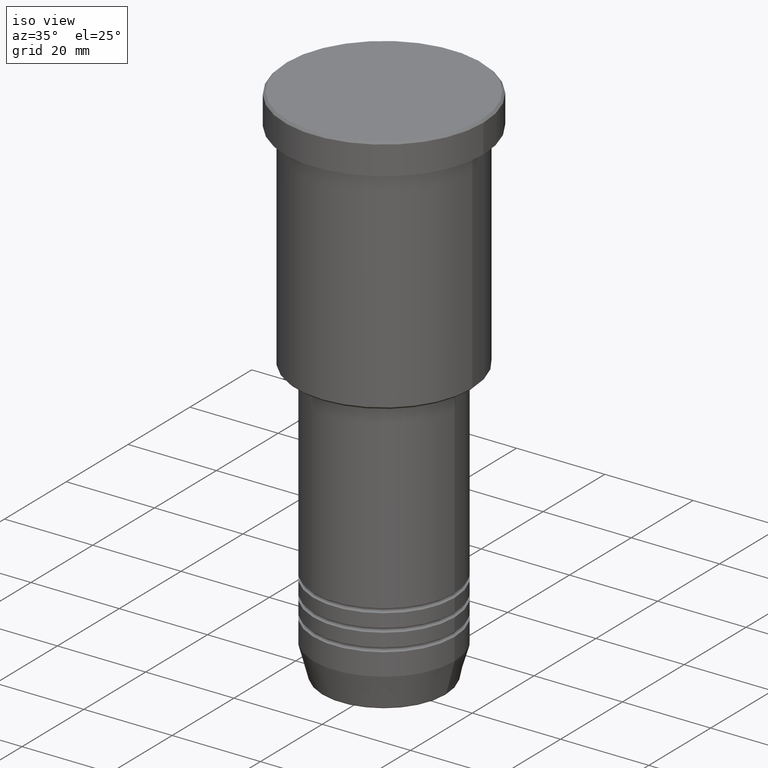
[diagram: clean part render]
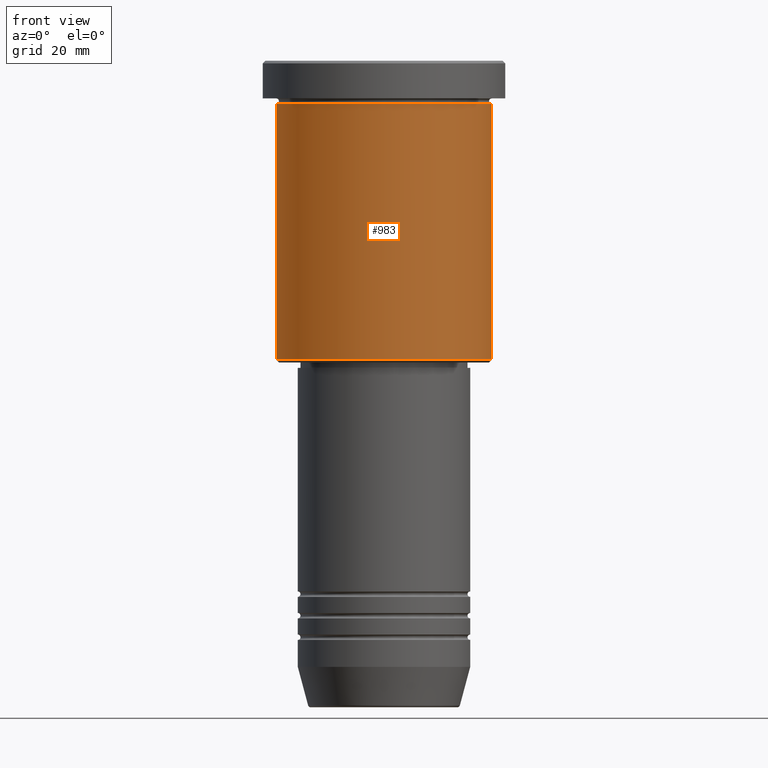
[diagram: tour spotlight — one face highlighted and labeled with its STEP entity id]
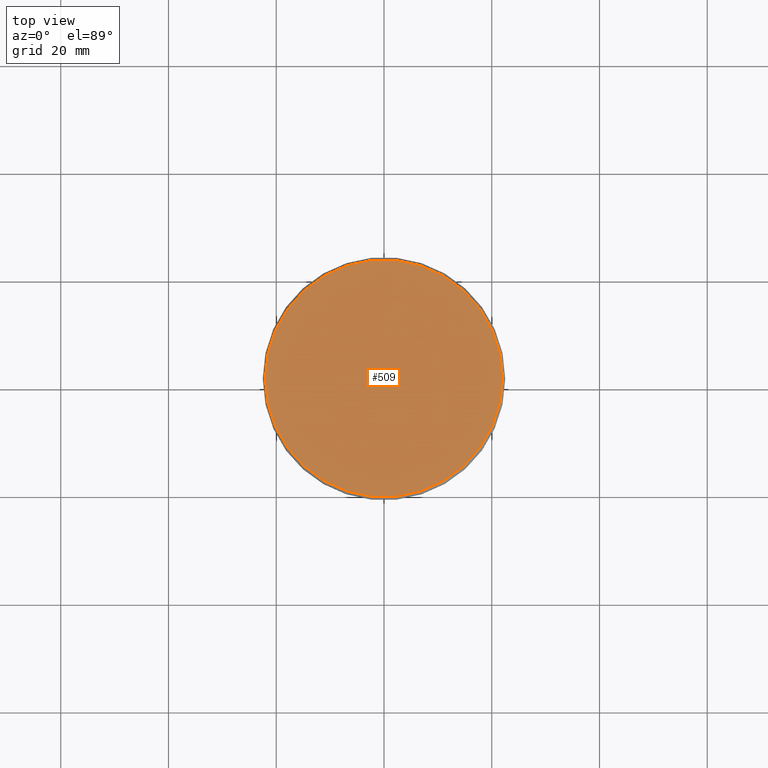
[diagram: tour spotlight — one face highlighted and labeled with its STEP entity id]
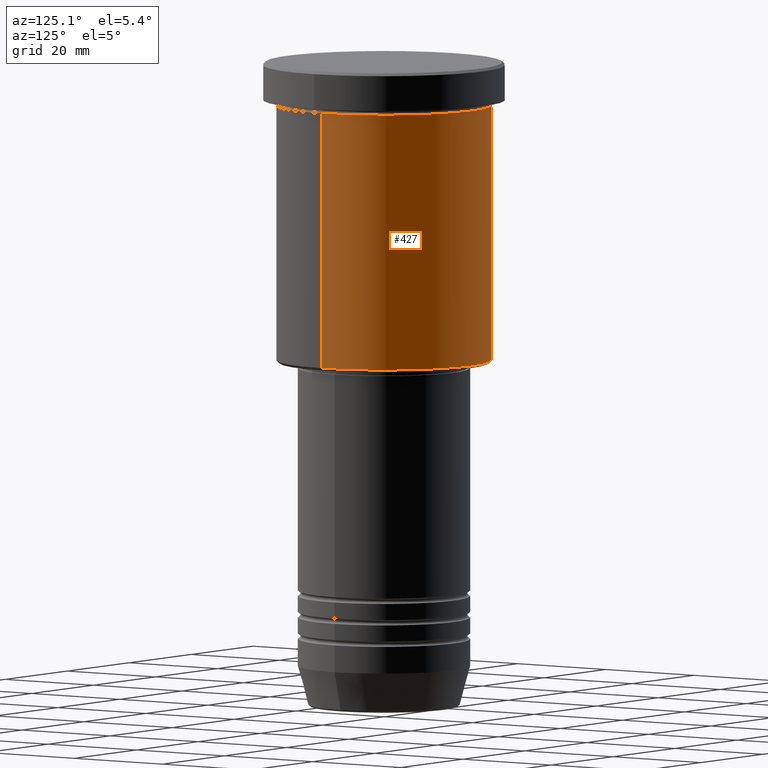
[diagram: tour spotlight — one face highlighted and labeled with its STEP entity id]
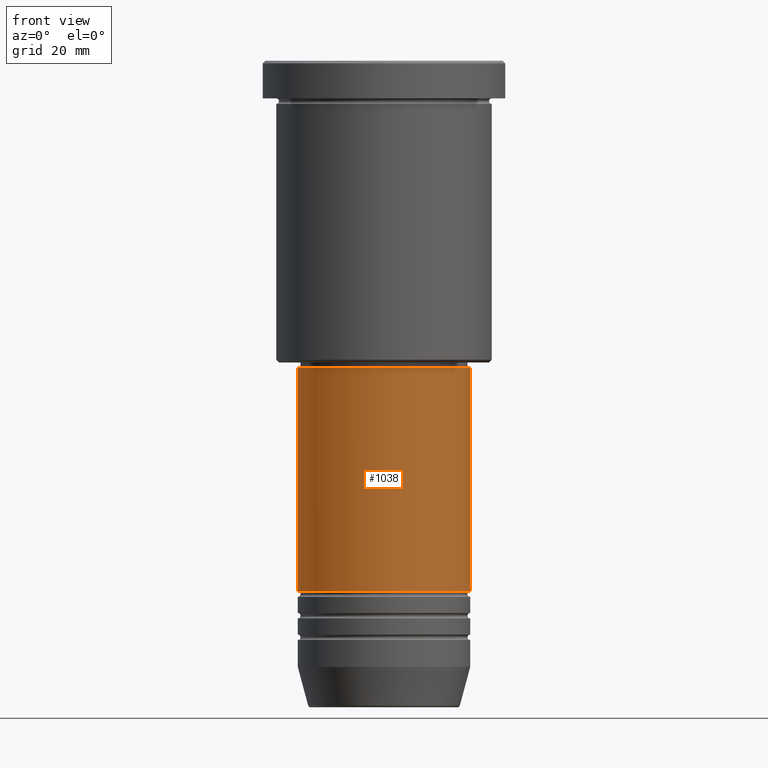
[diagram: tour spotlight — one face highlighted and labeled with its STEP entity id]
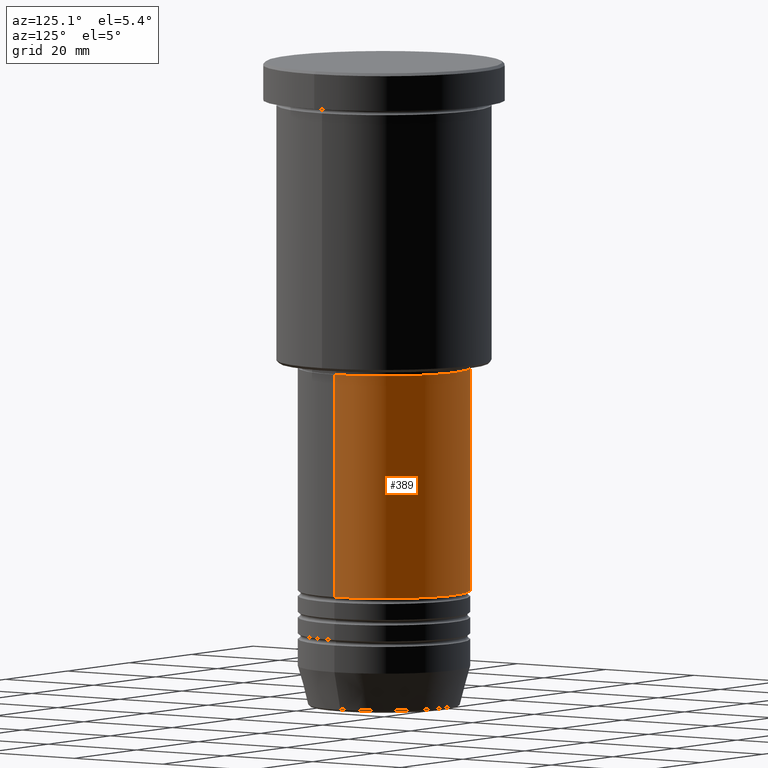
[diagram: tour spotlight — one face highlighted and labeled with its STEP entity id]
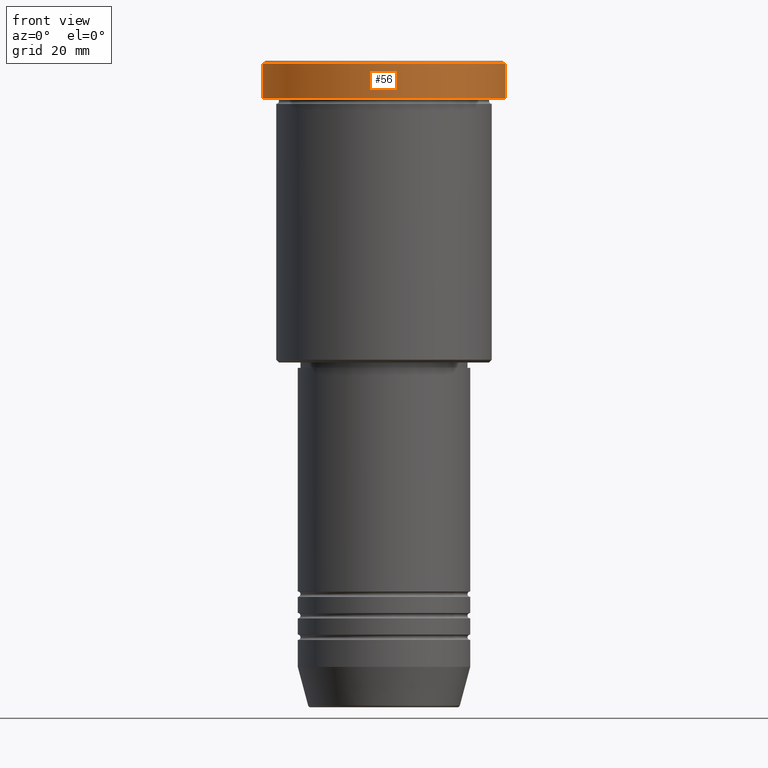
[diagram: tour spotlight — one face highlighted and labeled with its STEP entity id]
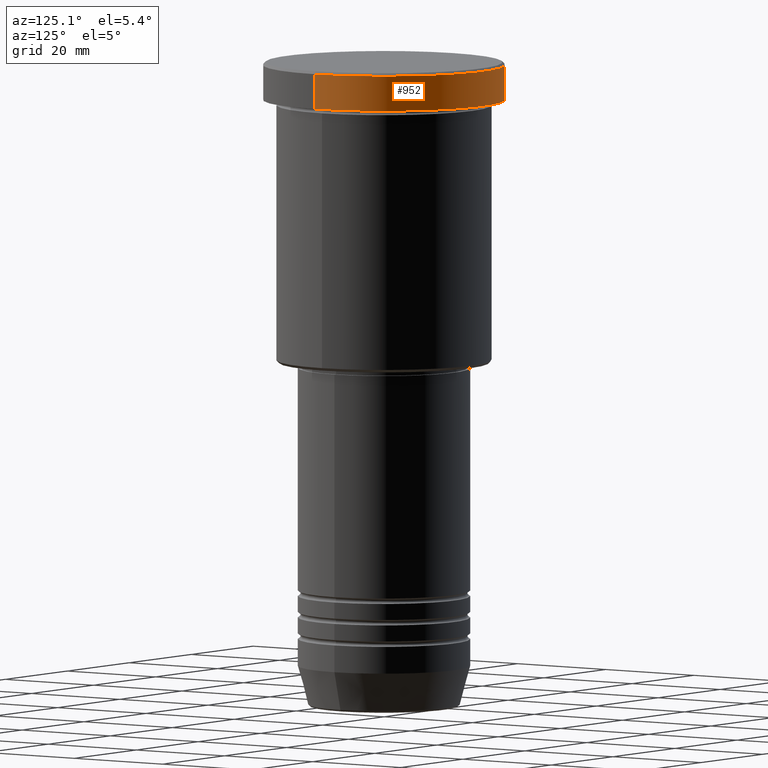
[diagram: tour spotlight — one face highlighted and labeled with its STEP entity id]
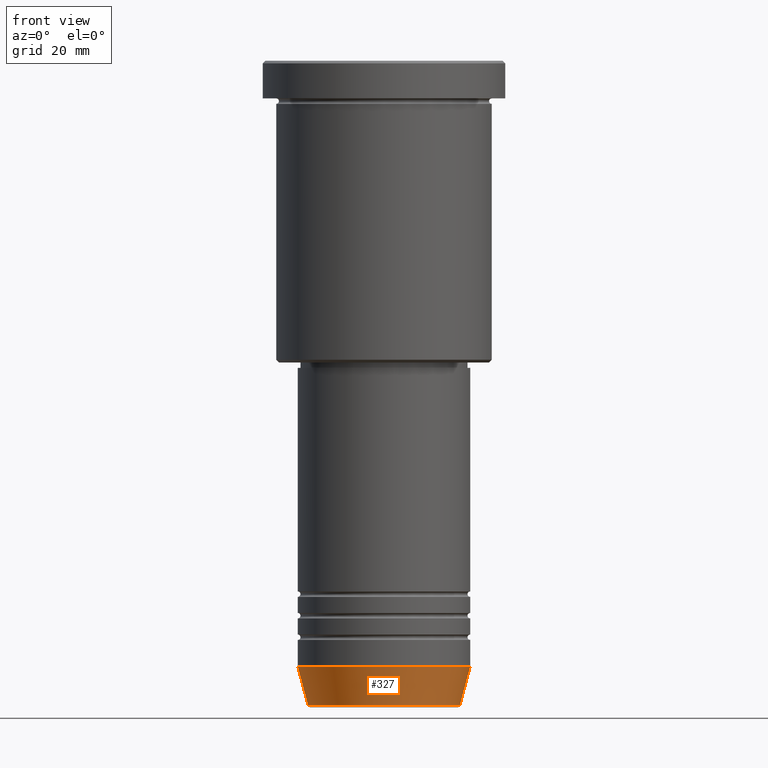
[diagram: tour spotlight — one face highlighted and labeled with its STEP entity id]
A machine part: a face-by-face anatomy tour. The part has 43 B-rep faces; the first image is the clean iso view, then the 8 largest visible faces are spotlighted one at a time (largest first), each with its STEP entity span.

Face 1 — front view, entity #983. In plain terms, the highlighted cylindrical surface (partial cylindrical patch) has radius 20 mm, axis along (-0, -0, 1).
Definition (entity closure, byte-faithful):
#8 = VERTEX_POINT ( 'NONE', #445 ) ;
#34 = LINE ( 'NONE', #398, #1052 ) ;
#52 = FACE_OUTER_BOUND ( 'NONE', #277, .T. ) ;
#58 = CARTESIAN_POINT ( 'NONE',  ( 0.000000000000000000, 0.000000000000000000, 0.000000000000000000 ) ) ;
#105 = DIRECTION ( 'NONE',  ( -0.000000000000000000, -0.000000000000000000, 1.000000000000000000 ) ) ;
#120 = DIRECTION ( 'NONE',  ( 1.000000000000000000, 0.000000000000000000, 0.000000000000000000 ) ) ;
#123 = CARTESIAN_POINT ( 'NONE',  ( 0.000000000000000000, 0.000000000000000000, -55.49999999999999289 ) ) ;
#260 = EDGE_CURVE ( 'NONE', #869, #543, #283, .T. ) ;
#277 = EDGE_LOOP ( 'NONE', ( #363, #738, #516, #1040 ) ) ;
#279 = CARTESIAN_POINT ( 'NONE',  ( 20.00000000000000355, 0.000000000000000000, -55.49999999999999289 ) ) ;
#283 = CIRCLE ( 'NONE', #1105, 20.00000000000000000 ) ;
#350 = CARTESIAN_POINT ( 'NONE',  ( -20.00000000000000355, 2.449293598294706907E-15, 0.000000000000000000 ) ) ;
#363 = ORIENTED_EDGE ( 'NONE', *, *, #1092, .F. ) ;
#392 = DIRECTION ( 'NONE',  ( -0.000000000000000000, -0.000000000000000000, 1.000000000000000000 ) ) ;
#398 = CARTESIAN_POINT ( 'NONE',  ( 20.00000000000000355, 0.000000000000000000, 0.000000000000000000 ) ) ;
#438 = EDGE_CURVE ( 'NONE', #891, #543, #34, .T. ) ;
#445 = CARTESIAN_POINT ( 'NONE',  ( -20.00000000000000355, 2.449293598294706907E-15, -55.49999999999999289 ) ) ;
#473 = EDGE_CURVE ( 'NONE', #8, #891, #647, .T. ) ;
#516 = ORIENTED_EDGE ( 'NONE', *, *, #438, .T. ) ;
#543 = VERTEX_POINT ( 'NONE', #680 ) ;
#553 = CARTESIAN_POINT ( 'NONE',  ( -20.00000000000000000, 2.449293598294706513E-15, -7.999999999999994671 ) ) ;
#637 = DIRECTION ( 'NONE',  ( -0.000000000000000000, -0.000000000000000000, 1.000000000000000000 ) ) ;
#647 = CIRCLE ( 'NONE', #1075, 20.00000000000000355 ) ;
#664 = CARTESIAN_POINT ( 'NONE',  ( 0.000000000000000000, 0.000000000000000000, -7.999999999999994671 ) ) ;
#678 = CYLINDRICAL_SURFACE ( 'NONE', #846, 20.00000000000000355 ) ;
#680 = CARTESIAN_POINT ( 'NONE',  ( 20.00000000000000000, 0.000000000000000000, -7.999999999999994671 ) ) ;
#738 = ORIENTED_EDGE ( 'NONE', *, *, #473, .T. ) ;
#757 = DIRECTION ( 'NONE',  ( -1.000000000000000000, 0.000000000000000000, 0.000000000000000000 ) ) ;
#795 = LINE ( 'NONE', #350, #1165 ) ;
#846 = AXIS2_PLACEMENT_3D ( 'NONE', #58, #1150, #973 ) ;
#869 = VERTEX_POINT ( 'NONE', #553 ) ;
#891 = VERTEX_POINT ( 'NONE', #279 ) ;
#973 = DIRECTION ( 'NONE',  ( 1.000000000000000000, 0.000000000000000000, 0.000000000000000000 ) ) ;
#983 = ADVANCED_FACE ( 'NONE', ( #52 ), #678, .T. ) ;
#1029 = DIRECTION ( 'NONE',  ( -0.000000000000000000, -0.000000000000000000, 1.000000000000000000 ) ) ;
#1040 = ORIENTED_EDGE ( 'NONE', *, *, #260, .F. ) ;
#1052 = VECTOR ( 'NONE', #105, 1000.000000000000000 ) ;
#1075 = AXIS2_PLACEMENT_3D ( 'NONE', #123, #392, #757 ) ;
#1092 = EDGE_CURVE ( 'NONE', #8, #869, #795, .T. ) ;
#1105 = AXIS2_PLACEMENT_3D ( 'NONE', #664, #1029, #120 ) ;
#1150 = DIRECTION ( 'NONE',  ( -0.000000000000000000, -0.000000000000000000, 1.000000000000000000 ) ) ;
#1165 = VECTOR ( 'NONE', #637, 1000.000000000000000 ) ;

Face 2 — top view, entity #509. In plain terms, the highlighted planar face has unit normal (0, -0, 1).
Definition (entity closure, byte-faithful):
#16 = AXIS2_PLACEMENT_3D ( 'NONE', #700, #609, #54 ) ;
#49 = PLANE ( 'NONE',  #16 ) ;
#54 = DIRECTION ( 'NONE',  ( 1.000000000000000000, 0.000000000000000000, 0.000000000000000000 ) ) ;
#86 = EDGE_CURVE ( 'NONE', #555, #741, #249, .T. ) ;
#124 = ORIENTED_EDGE ( 'NONE', *, *, #86, .T. ) ;
#249 = CIRCLE ( 'NONE', #477, 22.00000000000002132 ) ;
#266 = EDGE_LOOP ( 'NONE', ( #701, #124 ) ) ;
#352 = DIRECTION ( 'NONE',  ( 1.000000000000000000, 0.000000000000000000, 0.000000000000000000 ) ) ;
#378 = EDGE_CURVE ( 'NONE', #741, #555, #1162, .T. ) ;
#467 = CARTESIAN_POINT ( 'NONE',  ( 0.000000000000000000, 0.000000000000000000, 0.000000000000000000 ) ) ;
#477 = AXIS2_PLACEMENT_3D ( 'NONE', #796, #982, #352 ) ;
#509 = ADVANCED_FACE ( 'NONE', ( #957 ), #49, .T. ) ;
#555 = VERTEX_POINT ( 'NONE', #880 ) ;
#609 = DIRECTION ( 'NONE',  ( 0.000000000000000000, -0.000000000000000000, 1.000000000000000000 ) ) ;
#700 = CARTESIAN_POINT ( 'NONE',  ( 0.000000000000000000, 0.000000000000000000, 0.000000000000000000 ) ) ;
#701 = ORIENTED_EDGE ( 'NONE', *, *, #378, .T. ) ;
#727 = AXIS2_PLACEMENT_3D ( 'NONE', #467, #847, #1020 ) ;
#741 = VERTEX_POINT ( 'NONE', #1089 ) ;
#796 = CARTESIAN_POINT ( 'NONE',  ( 0.000000000000000000, 0.000000000000000000, 0.000000000000000000 ) ) ;
#847 = DIRECTION ( 'NONE',  ( -0.000000000000000000, -0.000000000000000000, 1.000000000000000000 ) ) ;
#880 = CARTESIAN_POINT ( 'NONE',  ( 22.00000000000002132, 2.724839128102862174E-15, 0.000000000000000000 ) ) ;
#957 = FACE_OUTER_BOUND ( 'NONE', #266, .T. ) ;
#982 = DIRECTION ( 'NONE',  ( -0.000000000000000000, -0.000000000000000000, 1.000000000000000000 ) ) ;
#1020 = DIRECTION ( 'NONE',  ( 1.000000000000000000, 0.000000000000000000, 0.000000000000000000 ) ) ;
#1089 = CARTESIAN_POINT ( 'NONE',  ( -22.00000000000002132, 0.000000000000000000, 0.000000000000000000 ) ) ;
#1162 = CIRCLE ( 'NONE', #727, 22.00000000000002132 ) ;

Face 3 — auxiliary view, entity #427. In plain terms, the highlighted cylindrical surface (partial cylindrical patch) has radius 20 mm, axis along (-0, -0, 1).
Definition (entity closure, byte-faithful):
#8 = VERTEX_POINT ( 'NONE', #445 ) ;
#30 = CARTESIAN_POINT ( 'NONE',  ( 0.000000000000000000, 0.000000000000000000, 0.000000000000000000 ) ) ;
#34 = LINE ( 'NONE', #398, #1052 ) ;
#59 = AXIS2_PLACEMENT_3D ( 'NONE', #30, #1026, #1104 ) ;
#105 = DIRECTION ( 'NONE',  ( -0.000000000000000000, -0.000000000000000000, 1.000000000000000000 ) ) ;
#109 = FACE_OUTER_BOUND ( 'NONE', #403, .T. ) ;
#141 = ORIENTED_EDGE ( 'NONE', *, *, #1092, .T. ) ;
#157 = DIRECTION ( 'NONE',  ( -0.000000000000000000, -0.000000000000000000, 1.000000000000000000 ) ) ;
#204 = ORIENTED_EDGE ( 'NONE', *, *, #932, .F. ) ;
#211 = CIRCLE ( 'NONE', #558, 20.00000000000000355 ) ;
#279 = CARTESIAN_POINT ( 'NONE',  ( 20.00000000000000355, 0.000000000000000000, -55.49999999999999289 ) ) ;
#284 = CYLINDRICAL_SURFACE ( 'NONE', #59, 20.00000000000000355 ) ;
#350 = CARTESIAN_POINT ( 'NONE',  ( -20.00000000000000355, 2.449293598294706907E-15, 0.000000000000000000 ) ) ;
#385 = AXIS2_PLACEMENT_3D ( 'NONE', #470, #666, #1018 ) ;
#398 = CARTESIAN_POINT ( 'NONE',  ( 20.00000000000000355, 0.000000000000000000, 0.000000000000000000 ) ) ;
#403 = EDGE_LOOP ( 'NONE', ( #1066, #141, #204, #889 ) ) ;
#427 = ADVANCED_FACE ( 'NONE', ( #109 ), #284, .T. ) ;
#438 = EDGE_CURVE ( 'NONE', #891, #543, #34, .T. ) ;
#445 = CARTESIAN_POINT ( 'NONE',  ( -20.00000000000000355, 2.449293598294706907E-15, -55.49999999999999289 ) ) ;
#470 = CARTESIAN_POINT ( 'NONE',  ( 0.000000000000000000, 0.000000000000000000, -7.999999999999994671 ) ) ;
#532 = CARTESIAN_POINT ( 'NONE',  ( 0.000000000000000000, 0.000000000000000000, -55.49999999999999289 ) ) ;
#543 = VERTEX_POINT ( 'NONE', #680 ) ;
#553 = CARTESIAN_POINT ( 'NONE',  ( -20.00000000000000000, 2.449293598294706513E-15, -7.999999999999994671 ) ) ;
#558 = AXIS2_PLACEMENT_3D ( 'NONE', #532, #157, #818 ) ;
#637 = DIRECTION ( 'NONE',  ( -0.000000000000000000, -0.000000000000000000, 1.000000000000000000 ) ) ;
#666 = DIRECTION ( 'NONE',  ( -0.000000000000000000, -0.000000000000000000, 1.000000000000000000 ) ) ;
#680 = CARTESIAN_POINT ( 'NONE',  ( 20.00000000000000000, 0.000000000000000000, -7.999999999999994671 ) ) ;
#795 = LINE ( 'NONE', #350, #1165 ) ;
#818 = DIRECTION ( 'NONE',  ( -1.000000000000000000, 0.000000000000000000, 0.000000000000000000 ) ) ;
#869 = VERTEX_POINT ( 'NONE', #553 ) ;
#889 = ORIENTED_EDGE ( 'NONE', *, *, #438, .F. ) ;
#891 = VERTEX_POINT ( 'NONE', #279 ) ;
#904 = CIRCLE ( 'NONE', #385, 20.00000000000000000 ) ;
#932 = EDGE_CURVE ( 'NONE', #543, #869, #904, .T. ) ;
#1018 = DIRECTION ( 'NONE',  ( 1.000000000000000000, 0.000000000000000000, 0.000000000000000000 ) ) ;
#1026 = DIRECTION ( 'NONE',  ( -0.000000000000000000, -0.000000000000000000, 1.000000000000000000 ) ) ;
#1052 = VECTOR ( 'NONE', #105, 1000.000000000000000 ) ;
#1066 = ORIENTED_EDGE ( 'NONE', *, *, #1109, .T. ) ;
#1092 = EDGE_CURVE ( 'NONE', #8, #869, #795, .T. ) ;
#1104 = DIRECTION ( 'NONE',  ( 1.000000000000000000, 0.000000000000000000, 0.000000000000000000 ) ) ;
#1109 = EDGE_CURVE ( 'NONE', #891, #8, #211, .T. ) ;
#1165 = VECTOR ( 'NONE', #637, 1000.000000000000000 ) ;

Face 4 — front view, entity #1038. In plain terms, the highlighted cylindrical surface (partial cylindrical patch) has radius 16 mm, axis along (-0, -0, 1).
Definition (entity closure, byte-faithful):
#31 = ORIENTED_EDGE ( 'NONE', *, *, #645, .F. ) ;
#32 = FACE_OUTER_BOUND ( 'NONE', #1180, .T. ) ;
#139 = LINE ( 'NONE', #323, #425 ) ;
#171 = CARTESIAN_POINT ( 'NONE',  ( 0.000000000000000000, 0.000000000000000000, -98.49999999999997158 ) ) ;
#179 = VERTEX_POINT ( 'NONE', #401 ) ;
#190 = AXIS2_PLACEMENT_3D ( 'NONE', #171, #530, #542 ) ;
#213 = VERTEX_POINT ( 'NONE', #1113 ) ;
#244 = CYLINDRICAL_SURFACE ( 'NONE', #938, 16.00000000000000000 ) ;
#254 = LINE ( 'NONE', #453, #843 ) ;
#274 = EDGE_CURVE ( 'NONE', #603, #213, #139, .T. ) ;
#316 = ORIENTED_EDGE ( 'NONE', *, *, #702, .T. ) ;
#323 = CARTESIAN_POINT ( 'NONE',  ( -16.00000000000000000, 1.959434878635765131E-15, 0.000000000000000000 ) ) ;
#326 = ORIENTED_EDGE ( 'NONE', *, *, #677, .T. ) ;
#357 = CARTESIAN_POINT ( 'NONE',  ( 0.000000000000000000, 0.000000000000000000, -57.00000000000002842 ) ) ;
#401 = CARTESIAN_POINT ( 'NONE',  ( 16.00000000000000000, 0.000000000000000000, -57.00000000000002842 ) ) ;
#402 = DIRECTION ( 'NONE',  ( -0.000000000000000000, -0.000000000000000000, 1.000000000000000000 ) ) ;
#425 = VECTOR ( 'NONE', #672, 1000.000000000000000 ) ;
#453 = CARTESIAN_POINT ( 'NONE',  ( 16.00000000000000000, 0.000000000000000000, 0.000000000000000000 ) ) ;
#459 = AXIS2_PLACEMENT_3D ( 'NONE', #357, #549, #1085 ) ;
#496 = ORIENTED_EDGE ( 'NONE', *, *, #274, .F. ) ;
#530 = DIRECTION ( 'NONE',  ( -0.000000000000000000, -0.000000000000000000, 1.000000000000000000 ) ) ;
#542 = DIRECTION ( 'NONE',  ( 1.000000000000000000, 0.000000000000000000, 0.000000000000000000 ) ) ;
#549 = DIRECTION ( 'NONE',  ( -0.000000000000000000, -0.000000000000000000, 1.000000000000000000 ) ) ;
#575 = CIRCLE ( 'NONE', #190, 16.00000000000000000 ) ;
#603 = VERTEX_POINT ( 'NONE', #777 ) ;
#645 = EDGE_CURVE ( 'NONE', #213, #179, #978, .T. ) ;
#672 = DIRECTION ( 'NONE',  ( -0.000000000000000000, -0.000000000000000000, 1.000000000000000000 ) ) ;
#677 = EDGE_CURVE ( 'NONE', #1048, #179, #254, .T. ) ;
#702 = EDGE_CURVE ( 'NONE', #603, #1048, #575, .T. ) ;
#713 = DIRECTION ( 'NONE',  ( -0.000000000000000000, -0.000000000000000000, 1.000000000000000000 ) ) ;
#777 = CARTESIAN_POINT ( 'NONE',  ( -16.00000000000000000, 1.959434878635765131E-15, -98.49999999999997158 ) ) ;
#786 = CARTESIAN_POINT ( 'NONE',  ( 16.00000000000000000, 0.000000000000000000, -98.49999999999997158 ) ) ;
#843 = VECTOR ( 'NONE', #713, 1000.000000000000000 ) ;
#938 = AXIS2_PLACEMENT_3D ( 'NONE', #947, #402, #1065 ) ;
#947 = CARTESIAN_POINT ( 'NONE',  ( 0.000000000000000000, 0.000000000000000000, 0.000000000000000000 ) ) ;
#978 = CIRCLE ( 'NONE', #459, 16.00000000000000000 ) ;
#1038 = ADVANCED_FACE ( 'NONE', ( #32 ), #244, .T. ) ;
#1048 = VERTEX_POINT ( 'NONE', #786 ) ;
#1065 = DIRECTION ( 'NONE',  ( 1.000000000000000000, 0.000000000000000000, 0.000000000000000000 ) ) ;
#1085 = DIRECTION ( 'NONE',  ( 1.000000000000000000, 0.000000000000000000, 0.000000000000000000 ) ) ;
#1113 = CARTESIAN_POINT ( 'NONE',  ( -16.00000000000000000, 1.959434878635765131E-15, -57.00000000000002842 ) ) ;
#1180 = EDGE_LOOP ( 'NONE', ( #496, #316, #326, #31 ) ) ;

Face 5 — auxiliary view, entity #389. In plain terms, the highlighted cylindrical surface (partial cylindrical patch) has radius 16 mm, axis along (-0, -0, 1).
Definition (entity closure, byte-faithful):
#44 = ORIENTED_EDGE ( 'NONE', *, *, #191, .T. ) ;
#111 = CIRCLE ( 'NONE', #1054, 16.00000000000000000 ) ;
#117 = ORIENTED_EDGE ( 'NONE', *, *, #442, .F. ) ;
#139 = LINE ( 'NONE', #323, #425 ) ;
#148 = ORIENTED_EDGE ( 'NONE', *, *, #677, .F. ) ;
#169 = DIRECTION ( 'NONE',  ( -0.000000000000000000, -0.000000000000000000, 1.000000000000000000 ) ) ;
#179 = VERTEX_POINT ( 'NONE', #401 ) ;
#189 = AXIS2_PLACEMENT_3D ( 'NONE', #834, #561, #565 ) ;
#191 = EDGE_CURVE ( 'NONE', #1048, #603, #707, .T. ) ;
#195 = DIRECTION ( 'NONE',  ( -0.000000000000000000, -0.000000000000000000, 1.000000000000000000 ) ) ;
#213 = VERTEX_POINT ( 'NONE', #1113 ) ;
#254 = LINE ( 'NONE', #453, #843 ) ;
#274 = EDGE_CURVE ( 'NONE', #603, #213, #139, .T. ) ;
#288 = CARTESIAN_POINT ( 'NONE',  ( 0.000000000000000000, 0.000000000000000000, -98.49999999999997158 ) ) ;
#323 = CARTESIAN_POINT ( 'NONE',  ( -16.00000000000000000, 1.959434878635765131E-15, 0.000000000000000000 ) ) ;
#389 = ADVANCED_FACE ( 'NONE', ( #488 ), #1116, .T. ) ;
#401 = CARTESIAN_POINT ( 'NONE',  ( 16.00000000000000000, 0.000000000000000000, -57.00000000000002842 ) ) ;
#425 = VECTOR ( 'NONE', #672, 1000.000000000000000 ) ;
#442 = EDGE_CURVE ( 'NONE', #179, #213, #111, .T. ) ;
#453 = CARTESIAN_POINT ( 'NONE',  ( 16.00000000000000000, 0.000000000000000000, 0.000000000000000000 ) ) ;
#488 = FACE_OUTER_BOUND ( 'NONE', #762, .T. ) ;
#499 = AXIS2_PLACEMENT_3D ( 'NONE', #288, #169, #907 ) ;
#561 = DIRECTION ( 'NONE',  ( -0.000000000000000000, -0.000000000000000000, 1.000000000000000000 ) ) ;
#565 = DIRECTION ( 'NONE',  ( 1.000000000000000000, 0.000000000000000000, 0.000000000000000000 ) ) ;
#603 = VERTEX_POINT ( 'NONE', #777 ) ;
#672 = DIRECTION ( 'NONE',  ( -0.000000000000000000, -0.000000000000000000, 1.000000000000000000 ) ) ;
#677 = EDGE_CURVE ( 'NONE', #1048, #179, #254, .T. ) ;
#707 = CIRCLE ( 'NONE', #499, 16.00000000000000000 ) ;
#713 = DIRECTION ( 'NONE',  ( -0.000000000000000000, -0.000000000000000000, 1.000000000000000000 ) ) ;
#762 = EDGE_LOOP ( 'NONE', ( #44, #1019, #117, #148 ) ) ;
#770 = DIRECTION ( 'NONE',  ( 1.000000000000000000, 0.000000000000000000, 0.000000000000000000 ) ) ;
#777 = CARTESIAN_POINT ( 'NONE',  ( -16.00000000000000000, 1.959434878635765131E-15, -98.49999999999997158 ) ) ;
#786 = CARTESIAN_POINT ( 'NONE',  ( 16.00000000000000000, 0.000000000000000000, -98.49999999999997158 ) ) ;
#834 = CARTESIAN_POINT ( 'NONE',  ( 0.000000000000000000, 0.000000000000000000, 0.000000000000000000 ) ) ;
#843 = VECTOR ( 'NONE', #713, 1000.000000000000000 ) ;
#907 = DIRECTION ( 'NONE',  ( 1.000000000000000000, 0.000000000000000000, 0.000000000000000000 ) ) ;
#1016 = CARTESIAN_POINT ( 'NONE',  ( 0.000000000000000000, 0.000000000000000000, -57.00000000000002842 ) ) ;
#1019 = ORIENTED_EDGE ( 'NONE', *, *, #274, .T. ) ;
#1048 = VERTEX_POINT ( 'NONE', #786 ) ;
#1054 = AXIS2_PLACEMENT_3D ( 'NONE', #1016, #195, #770 ) ;
#1113 = CARTESIAN_POINT ( 'NONE',  ( -16.00000000000000000, 1.959434878635765131E-15, -57.00000000000002842 ) ) ;
#1116 = CYLINDRICAL_SURFACE ( 'NONE', #189, 16.00000000000000000 ) ;

Face 6 — front view, entity #56. In plain terms, the highlighted cylindrical surface (partial cylindrical patch) has radius 22.5 mm, axis along (-0, -0, 1).
Definition (entity closure, byte-faithful):
#13 = DIRECTION ( 'NONE',  ( -0.000000000000000000, -0.000000000000000000, 1.000000000000000000 ) ) ;
#14 = AXIS2_PLACEMENT_3D ( 'NONE', #758, #302, #730 ) ;
#29 = VERTEX_POINT ( 'NONE', #524 ) ;
#56 = ADVANCED_FACE ( 'NONE', ( #1156 ), #1151, .T. ) ;
#106 = EDGE_CURVE ( 'NONE', #977, #592, #349, .T. ) ;
#177 = CARTESIAN_POINT ( 'NONE',  ( 0.000000000000000000, 0.000000000000000000, -6.999999999999995559 ) ) ;
#183 = VERTEX_POINT ( 'NONE', #360 ) ;
#205 = CARTESIAN_POINT ( 'NONE',  ( -22.50000000000000000, 2.755455298081544778E-15, 0.000000000000000000 ) ) ;
#224 = ORIENTED_EDGE ( 'NONE', *, *, #106, .T. ) ;
#228 = CIRCLE ( 'NONE', #14, 22.50000000000000000 ) ;
#240 = DIRECTION ( 'NONE',  ( -0.000000000000000000, -0.000000000000000000, 1.000000000000000000 ) ) ;
#243 = EDGE_CURVE ( 'NONE', #29, #183, #228, .T. ) ;
#295 = DIRECTION ( 'NONE',  ( 1.000000000000000000, 0.000000000000000000, 0.000000000000000000 ) ) ;
#301 = ORIENTED_EDGE ( 'NONE', *, *, #243, .T. ) ;
#302 = DIRECTION ( 'NONE',  ( 0.000000000000000000, 0.000000000000000000, -1.000000000000000000 ) ) ;
#349 = CIRCLE ( 'NONE', #901, 22.50000000000000000 ) ;
#360 = CARTESIAN_POINT ( 'NONE',  ( -22.50000000000000000, 2.755455298081544778E-15, -0.4999999999999796274 ) ) ;
#449 = EDGE_CURVE ( 'NONE', #977, #183, #472, .T. ) ;
#472 = LINE ( 'NONE', #205, #769 ) ;
#474 = DIRECTION ( 'NONE',  ( -0.000000000000000000, -0.000000000000000000, 1.000000000000000000 ) ) ;
#524 = CARTESIAN_POINT ( 'NONE',  ( 22.50000000000000000, 0.000000000000000000, -0.4999999999999796274 ) ) ;
#584 = CARTESIAN_POINT ( 'NONE',  ( -22.50000000000000000, 2.755455298081544778E-15, -6.999999999999995559 ) ) ;
#592 = VERTEX_POINT ( 'NONE', #867 ) ;
#622 = DIRECTION ( 'NONE',  ( 1.000000000000000000, 0.000000000000000000, 0.000000000000000000 ) ) ;
#650 = VECTOR ( 'NONE', #655, 1000.000000000000000 ) ;
#655 = DIRECTION ( 'NONE',  ( -0.000000000000000000, -0.000000000000000000, 1.000000000000000000 ) ) ;
#730 = DIRECTION ( 'NONE',  ( 1.000000000000000000, 0.000000000000000000, 0.000000000000000000 ) ) ;
#758 = CARTESIAN_POINT ( 'NONE',  ( 0.000000000000000000, 0.000000000000000000, -0.4999999999999796274 ) ) ;
#769 = VECTOR ( 'NONE', #13, 1000.000000000000000 ) ;
#857 = LINE ( 'NONE', #919, #650 ) ;
#861 = ORIENTED_EDGE ( 'NONE', *, *, #449, .F. ) ;
#867 = CARTESIAN_POINT ( 'NONE',  ( 22.50000000000000000, 0.000000000000000000, -6.999999999999995559 ) ) ;
#901 = AXIS2_PLACEMENT_3D ( 'NONE', #177, #474, #295 ) ;
#909 = EDGE_CURVE ( 'NONE', #592, #29, #857, .T. ) ;
#915 = EDGE_LOOP ( 'NONE', ( #861, #224, #948, #301 ) ) ;
#919 = CARTESIAN_POINT ( 'NONE',  ( 22.50000000000000000, 0.000000000000000000, 0.000000000000000000 ) ) ;
#948 = ORIENTED_EDGE ( 'NONE', *, *, #909, .T. ) ;
#965 = CARTESIAN_POINT ( 'NONE',  ( 0.000000000000000000, 0.000000000000000000, 0.000000000000000000 ) ) ;
#977 = VERTEX_POINT ( 'NONE', #584 ) ;
#995 = AXIS2_PLACEMENT_3D ( 'NONE', #965, #240, #622 ) ;
#1151 = CYLINDRICAL_SURFACE ( 'NONE', #995, 22.50000000000000000 ) ;
#1156 = FACE_OUTER_BOUND ( 'NONE', #915, .T. ) ;

Face 7 — auxiliary view, entity #952. In plain terms, the highlighted cylindrical surface (partial cylindrical patch) has radius 22.5 mm, axis along (-0, -0, 1).
Definition (entity closure, byte-faithful):
#13 = DIRECTION ( 'NONE',  ( -0.000000000000000000, -0.000000000000000000, 1.000000000000000000 ) ) ;
#29 = VERTEX_POINT ( 'NONE', #524 ) ;
#40 = CARTESIAN_POINT ( 'NONE',  ( 0.000000000000000000, 0.000000000000000000, 0.000000000000000000 ) ) ;
#183 = VERTEX_POINT ( 'NONE', #360 ) ;
#184 = EDGE_CURVE ( 'NONE', #592, #977, #443, .T. ) ;
#197 = DIRECTION ( 'NONE',  ( -0.000000000000000000, -0.000000000000000000, 1.000000000000000000 ) ) ;
#205 = CARTESIAN_POINT ( 'NONE',  ( -22.50000000000000000, 2.755455298081544778E-15, 0.000000000000000000 ) ) ;
#239 = FACE_OUTER_BOUND ( 'NONE', #696, .T. ) ;
#313 = DIRECTION ( 'NONE',  ( 0.000000000000000000, 0.000000000000000000, -1.000000000000000000 ) ) ;
#339 = DIRECTION ( 'NONE',  ( 1.000000000000000000, 0.000000000000000000, 0.000000000000000000 ) ) ;
#355 = ORIENTED_EDGE ( 'NONE', *, *, #961, .T. ) ;
#360 = CARTESIAN_POINT ( 'NONE',  ( -22.50000000000000000, 2.755455298081544778E-15, -0.4999999999999796274 ) ) ;
#391 = ORIENTED_EDGE ( 'NONE', *, *, #909, .F. ) ;
#412 = ORIENTED_EDGE ( 'NONE', *, *, #449, .T. ) ;
#443 = CIRCLE ( 'NONE', #807, 22.50000000000000000 ) ;
#449 = EDGE_CURVE ( 'NONE', #977, #183, #472, .T. ) ;
#472 = LINE ( 'NONE', #205, #769 ) ;
#481 = CIRCLE ( 'NONE', #793, 22.50000000000000000 ) ;
#524 = CARTESIAN_POINT ( 'NONE',  ( 22.50000000000000000, 0.000000000000000000, -0.4999999999999796274 ) ) ;
#562 = DIRECTION ( 'NONE',  ( 1.000000000000000000, 0.000000000000000000, 0.000000000000000000 ) ) ;
#584 = CARTESIAN_POINT ( 'NONE',  ( -22.50000000000000000, 2.755455298081544778E-15, -6.999999999999995559 ) ) ;
#592 = VERTEX_POINT ( 'NONE', #867 ) ;
#602 = CARTESIAN_POINT ( 'NONE',  ( 0.000000000000000000, 0.000000000000000000, -0.4999999999999796274 ) ) ;
#612 = CYLINDRICAL_SURFACE ( 'NONE', #632, 22.50000000000000000 ) ;
#632 = AXIS2_PLACEMENT_3D ( 'NONE', #40, #1131, #339 ) ;
#650 = VECTOR ( 'NONE', #655, 1000.000000000000000 ) ;
#655 = DIRECTION ( 'NONE',  ( -0.000000000000000000, -0.000000000000000000, 1.000000000000000000 ) ) ;
#683 = DIRECTION ( 'NONE',  ( 1.000000000000000000, 0.000000000000000000, 0.000000000000000000 ) ) ;
#696 = EDGE_LOOP ( 'NONE', ( #1057, #412, #355, #391 ) ) ;
#769 = VECTOR ( 'NONE', #13, 1000.000000000000000 ) ;
#793 = AXIS2_PLACEMENT_3D ( 'NONE', #602, #313, #683 ) ;
#807 = AXIS2_PLACEMENT_3D ( 'NONE', #991, #197, #562 ) ;
#857 = LINE ( 'NONE', #919, #650 ) ;
#867 = CARTESIAN_POINT ( 'NONE',  ( 22.50000000000000000, 0.000000000000000000, -6.999999999999995559 ) ) ;
#909 = EDGE_CURVE ( 'NONE', #592, #29, #857, .T. ) ;
#919 = CARTESIAN_POINT ( 'NONE',  ( 22.50000000000000000, 0.000000000000000000, 0.000000000000000000 ) ) ;
#952 = ADVANCED_FACE ( 'NONE', ( #239 ), #612, .T. ) ;
#961 = EDGE_CURVE ( 'NONE', #183, #29, #481, .T. ) ;
#977 = VERTEX_POINT ( 'NONE', #584 ) ;
#991 = CARTESIAN_POINT ( 'NONE',  ( 0.000000000000000000, 0.000000000000000000, -6.999999999999995559 ) ) ;
#1057 = ORIENTED_EDGE ( 'NONE', *, *, #184, .T. ) ;
#1131 = DIRECTION ( 'NONE',  ( -0.000000000000000000, -0.000000000000000000, 1.000000000000000000 ) ) ;

Face 8 — front view, entity #327. In plain terms, the highlighted conical surface has half-angle 15 deg.
Definition (entity closure, byte-faithful):
#51 = DIRECTION ( 'NONE',  ( -0.000000000000000000, -0.000000000000000000, 1.000000000000000000 ) ) ;
#65 = DIRECTION ( 'NONE',  ( -0.000000000000000000, -0.000000000000000000, 1.000000000000000000 ) ) ;
#94 = CONICAL_SURFACE ( 'NONE', #825, 16.00000000000000000, 0.2617993877991500740 ) ;
#125 = DIRECTION ( 'NONE',  ( 1.000000000000000000, 0.000000000000000000, 0.000000000000000000 ) ) ;
#225 = CARTESIAN_POINT ( 'NONE',  ( -16.00000000000000000, 1.959434878635765131E-15, -112.4999999999999858 ) ) ;
#250 = CARTESIAN_POINT ( 'NONE',  ( 0.000000000000000000, 0.000000000000000000, -119.6294095225512564 ) ) ;
#275 = CARTESIAN_POINT ( 'NONE',  ( -16.00000000000000000, 1.959434878635765131E-15, -112.4999999999999858 ) ) ;
#289 = AXIS2_PLACEMENT_3D ( 'NONE', #250, #65, #1167 ) ;
#310 = FACE_OUTER_BOUND ( 'NONE', #1027, .T. ) ;
#327 = ADVANCED_FACE ( 'NONE', ( #310 ), #94, .T. ) ;
#373 = ORIENTED_EDGE ( 'NONE', *, *, #1149, .F. ) ;
#400 = VERTEX_POINT ( 'NONE', #939 ) ;
#463 = CIRCLE ( 'NONE', #289, 14.08968047592162698 ) ;
#485 = EDGE_CURVE ( 'NONE', #610, #585, #597, .T. ) ;
#523 = CARTESIAN_POINT ( 'NONE',  ( 14.08968047592162698, 0.000000000000000000, -119.6294095225512564 ) ) ;
#539 = AXIS2_PLACEMENT_3D ( 'NONE', #782, #884, #1140 ) ;
#573 = VECTOR ( 'NONE', #1174, 1000.000000000000000 ) ;
#585 = VERTEX_POINT ( 'NONE', #586 ) ;
#586 = CARTESIAN_POINT ( 'NONE',  ( 16.00000000000000000, 0.000000000000000000, -112.4999999999999858 ) ) ;
#597 = CIRCLE ( 'NONE', #539, 16.00000000000000000 ) ;
#610 = VERTEX_POINT ( 'NONE', #225 ) ;
#629 = EDGE_CURVE ( 'NONE', #1000, #585, #914, .T. ) ;
#719 = CARTESIAN_POINT ( 'NONE',  ( 16.00000000000000000, 0.000000000000000000, -112.4999999999999858 ) ) ;
#728 = LINE ( 'NONE', #275, #1077 ) ;
#782 = CARTESIAN_POINT ( 'NONE',  ( 0.000000000000000000, 0.000000000000000000, -112.4999999999999858 ) ) ;
#816 = ORIENTED_EDGE ( 'NONE', *, *, #1176, .T. ) ;
#825 = AXIS2_PLACEMENT_3D ( 'NONE', #1037, #51, #125 ) ;
#884 = DIRECTION ( 'NONE',  ( -0.000000000000000000, -0.000000000000000000, 1.000000000000000000 ) ) ;
#893 = DIRECTION ( 'NONE',  ( -0.2588190451025213501, 3.169619151431772337E-17, 0.9659258262890680902 ) ) ;
#914 = LINE ( 'NONE', #719, #573 ) ;
#939 = CARTESIAN_POINT ( 'NONE',  ( -14.08968047592162698, 1.842461544110201269E-15, -119.6294095225512564 ) ) ;
#1000 = VERTEX_POINT ( 'NONE', #523 ) ;
#1027 = EDGE_LOOP ( 'NONE', ( #373, #816, #1087, #1115 ) ) ;
#1037 = CARTESIAN_POINT ( 'NONE',  ( 0.000000000000000000, 0.000000000000000000, -112.4999999999999858 ) ) ;
#1077 = VECTOR ( 'NONE', #893, 1000.000000000000000 ) ;
#1087 = ORIENTED_EDGE ( 'NONE', *, *, #629, .T. ) ;
#1115 = ORIENTED_EDGE ( 'NONE', *, *, #485, .F. ) ;
#1140 = DIRECTION ( 'NONE',  ( 1.000000000000000000, 0.000000000000000000, 0.000000000000000000 ) ) ;
#1149 = EDGE_CURVE ( 'NONE', #400, #610, #728, .T. ) ;
#1167 = DIRECTION ( 'NONE',  ( 1.000000000000000000, 0.000000000000000000, 0.000000000000000000 ) ) ;
#1174 = DIRECTION ( 'NONE',  ( 0.2588190451025213501, 0.000000000000000000, 0.9659258262890680902 ) ) ;
#1176 = EDGE_CURVE ( 'NONE', #400, #1000, #463, .T. ) ;